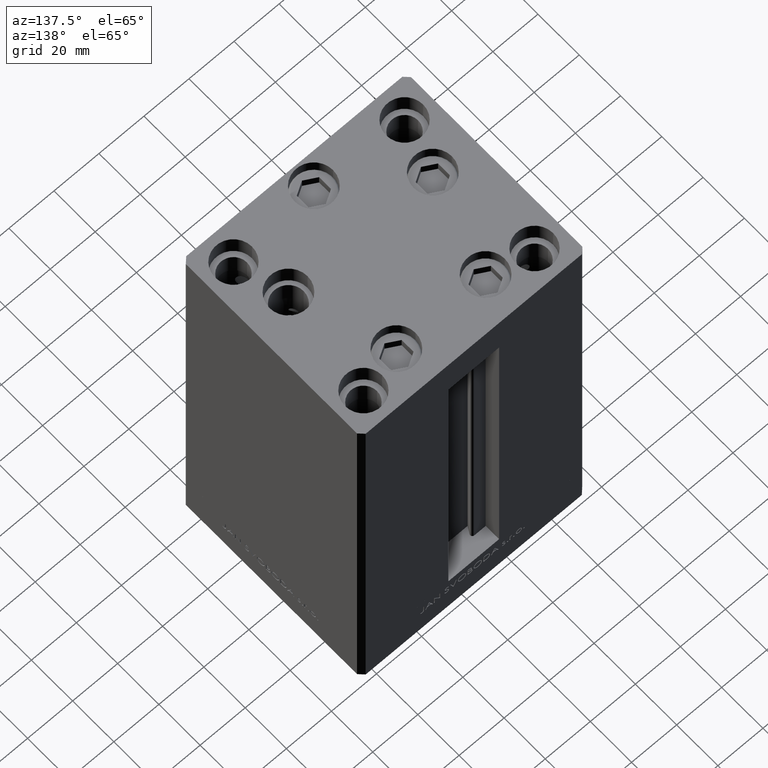
[diagram: clean part render]
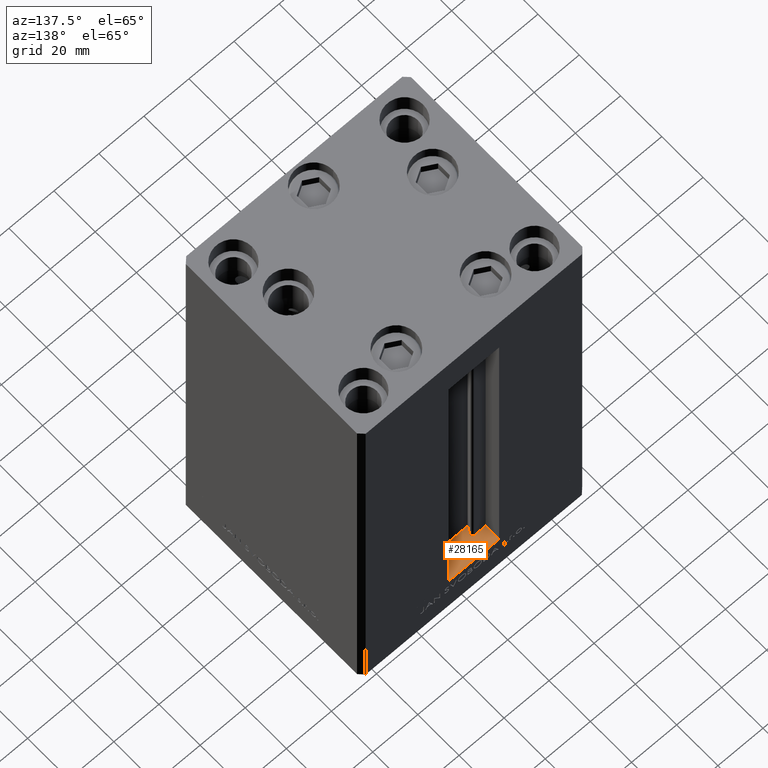
[diagram: same view with one face highlighted and labeled with its STEP entity id]
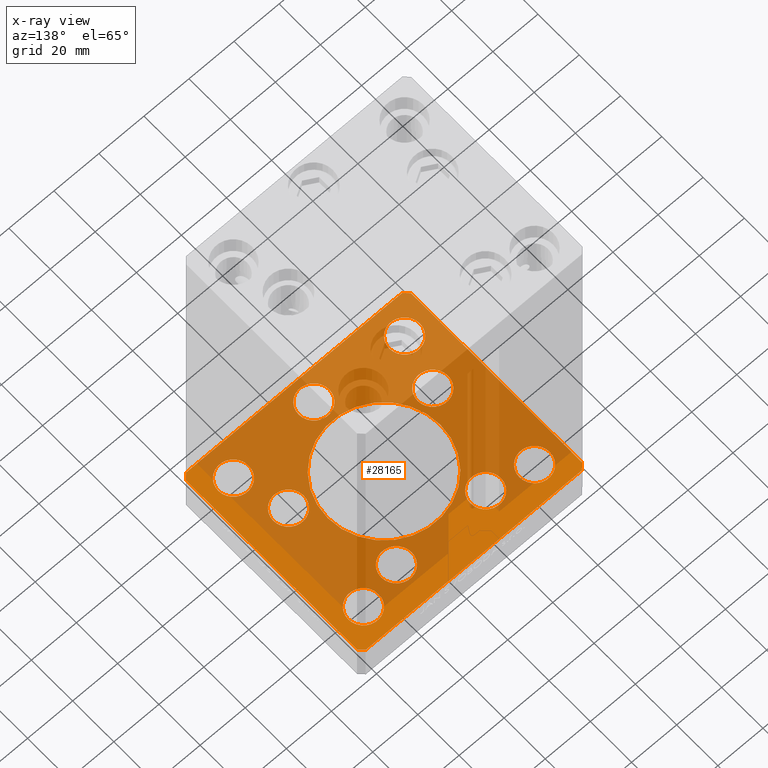
[diagram: x-ray of the same camera — body ghosted, the highlighted face saturated]
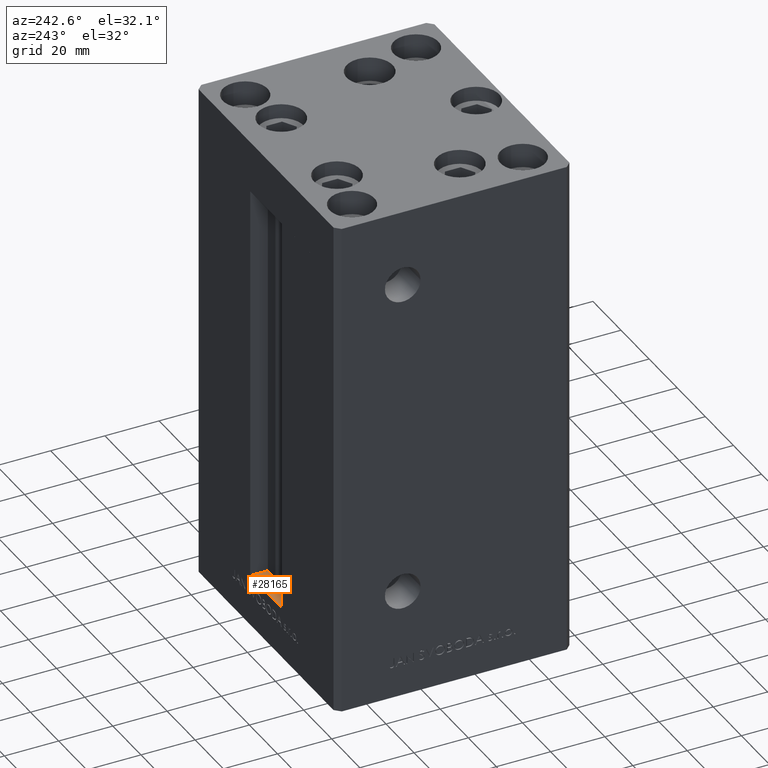
[diagram: same view with one face highlighted and labeled with its STEP entity id]
A machine part, auxiliary view. The second image highlights one B-rep face of the part: STEP entity #28165.
The next image is the same camera in x-ray: the body ghosted, the highlighted face saturated — about 75% of this face is hidden behind the body in this view.
A second angle (auxiliary view) of the same face is appended — the face is thin or edge-on in the first view.
In plain terms, the highlighted planar face has unit normal (0, 0, -1).
Its self-contained STEP definition (entity closure, byte-faithful):
#70 = VERTEX_POINT ( 'NONE', #22972 ) ;
#227 = VERTEX_POINT ( 'NONE', #35386 ) ;
#238 = DIRECTION ( 'NONE',  ( -0.000000000000000000, 0.000000000000000000, 1.000000000000000000 ) ) ;
#322 = VERTEX_POINT ( 'NONE', #41204 ) ;
#449 = DIRECTION ( 'NONE',  ( -1.000000000000000000, -2.891205793294678326E-16, 0.000000000000000000 ) ) ;
#604 = AXIS2_PLACEMENT_3D ( 'NONE', #41290, #18185, #10083 ) ;
#992 = AXIS2_PLACEMENT_3D ( 'NONE', #3879, #7442, #30523 ) ;
#1201 = CARTESIAN_POINT ( 'NONE',  ( -25.30550741379015989, -11.33333333333332860, -19.00000000000000000 ) ) ;
#1241 = CARTESIAN_POINT ( 'NONE',  ( 44.75000000000000711, -31.50000000000000711, -19.00000000000000000 ) ) ;
#1299 = VECTOR ( 'NONE', #19704, 1000.000000000000000 ) ;
#1324 = VECTOR ( 'NONE', #12312, 1000.000000000000000 ) ;
#1367 = CIRCLE ( 'NONE', #33003, 25.00000000000000000 ) ;
#1413 = EDGE_CURVE ( 'NONE', #227, #40834, #27589, .T. ) ;
#1439 = VERTEX_POINT ( 'NONE', #5397 ) ;
#1459 = CARTESIAN_POINT ( 'NONE',  ( 32.05550741379015989, -11.33333333333332860, -19.00000000000000000 ) ) ;
#1589 = CARTESIAN_POINT ( 'NONE',  ( -44.75000000000000711, -31.50000000000000711, -19.00000000000000000 ) ) ;
#2140 = CARTESIAN_POINT ( 'NONE',  ( -38.00000000000000000, 31.50000000000000000, -19.00000000000000000 ) ) ;
#2370 = VECTOR ( 'NONE', #29367, 1000.000000000000000 ) ;
#2617 = VECTOR ( 'NONE', #3645, 999.9999999999998863 ) ;
#2931 = CARTESIAN_POINT ( 'NONE',  ( -19.82068048781374969, 27.62499999999998934, -19.00000000000000000 ) ) ;
#3161 = CARTESIAN_POINT ( 'NONE',  ( -38.00000000000000000, 31.50000000000000000, -19.00000000000000000 ) ) ;
#3645 = DIRECTION ( 'NONE',  ( -0.7071067811865512365, 0.7071067811865439090, 0.000000000000000000 ) ) ;
#3818 = FACE_BOUND ( 'NONE', #47208, .T. ) ;
#3860 = EDGE_CURVE ( 'NONE', #15578, #37655, #40635, .T. ) ;
#3879 = CARTESIAN_POINT ( 'NONE',  ( -32.05550741379015989, -11.33333333333332860, -19.00000000000000000 ) ) ;
#4061 = DIRECTION ( 'NONE',  ( 0.000000000000000000, -0.000000000000000000, -1.000000000000000000 ) ) ;
#4078 = DIRECTION ( 'NONE',  ( -0.000000000000000000, 0.000000000000000000, 1.000000000000000000 ) ) ;
#4134 = ORIENTED_EDGE ( 'NONE', *, *, #45353, .F. ) ;
#4141 = DIRECTION ( 'NONE',  ( -0.000000000000000000, 0.000000000000000000, 1.000000000000000000 ) ) ;
#4728 = VERTEX_POINT ( 'NONE', #24227 ) ;
#4898 = CARTESIAN_POINT ( 'NONE',  ( -48.00000000000000000, 43.49999999999997158, -19.00000000000000000 ) ) ;
#5397 = CARTESIAN_POINT ( 'NONE',  ( -48.00000000000000711, -43.50000000000002842, -19.00000000000000000 ) ) ;
#5434 = DIRECTION ( 'NONE',  ( 1.000000000000000000, 0.000000000000000000, 0.000000000000000000 ) ) ;
#5442 = EDGE_CURVE ( 'NONE', #46063, #40208, #41463, .T. ) ;
#5487 = AXIS2_PLACEMENT_3D ( 'NONE', #31267, #24165, #19846 ) ;
#5648 = DIRECTION ( 'NONE',  ( -0.000000000000000000, 0.000000000000000000, 1.000000000000000000 ) ) ;
#5734 = AXIS2_PLACEMENT_3D ( 'NONE', #35587, #5648, #25177 ) ;
#6033 = ORIENTED_EDGE ( 'NONE', *, *, #45442, .T. ) ;
#6217 = DIRECTION ( 'NONE',  ( 1.000000000000000000, 0.000000000000000000, 0.000000000000000000 ) ) ;
#6290 = CARTESIAN_POINT ( 'NONE',  ( 38.00000000000000711, -31.50000000000000711, -19.00000000000000000 ) ) ;
#6323 = EDGE_LOOP ( 'NONE', ( #41107, #27523 ) ) ;
#6397 = VERTEX_POINT ( 'NONE', #15302 ) ;
#6411 = EDGE_CURVE ( 'NONE', #322, #32176, #6664, .T. ) ;
#6447 = AXIS2_PLACEMENT_3D ( 'NONE', #6290, #40797, #24823 ) ;
#6538 = LINE ( 'NONE', #21269, #2370 ) ;
#6664 = CIRCLE ( 'NONE', #992, 6.749999999999999112 ) ;
#6968 = EDGE_CURVE ( 'NONE', #35709, #10926, #27770, .T. ) ;
#7277 = LINE ( 'NONE', #22750, #1299 ) ;
#7442 = DIRECTION ( 'NONE',  ( -0.000000000000000000, 0.000000000000000000, 1.000000000000000000 ) ) ;
#7794 = CARTESIAN_POINT ( 'NONE',  ( -25.00000000000000000, 3.061616997868383043E-15, -19.00000000000000000 ) ) ;
#7867 = ORIENTED_EDGE ( 'NONE', *, *, #49977, .T. ) ;
#7896 = EDGE_CURVE ( 'NONE', #12876, #29345, #8481, .T. ) ;
#7898 = FACE_BOUND ( 'NONE', #40199, .T. ) ;
#8018 = LINE ( 'NONE', #23743, #1324 ) ;
#8381 = ORIENTED_EDGE ( 'NONE', *, *, #45748, .F. ) ;
#8481 = LINE ( 'NONE', #22943, #2617 ) ;
#8650 = EDGE_CURVE ( 'NONE', #42389, #49010, #26997, .T. ) ;
#8725 = AXIS2_PLACEMENT_3D ( 'NONE', #2931, #19160, #11298 ) ;
#8841 = ORIENTED_EDGE ( 'NONE', *, *, #35426, .T. ) ;
#9719 = CARTESIAN_POINT ( 'NONE',  ( 38.00000000000000711, -31.50000000000000711, -19.00000000000000000 ) ) ;
#9918 = CARTESIAN_POINT ( 'NONE',  ( 50.00000000000000000, 41.50000000000000711, -19.00000000000000000 ) ) ;
#10077 = CIRCLE ( 'NONE', #38431, 6.749999999999999112 ) ;
#10083 = DIRECTION ( 'NONE',  ( 1.000000000000000000, 0.000000000000000000, 0.000000000000000000 ) ) ;
#10243 = CIRCLE ( 'NONE', #38608, 6.749999999999999112 ) ;
#10308 = DIRECTION ( 'NONE',  ( 1.000000000000000000, 0.000000000000000000, 0.000000000000000000 ) ) ;
#10429 = CARTESIAN_POINT ( 'NONE',  ( 0.000000000000000000, -34.00000000000000000, -19.00000000000000000 ) ) ;
#10548 = EDGE_LOOP ( 'NONE', ( #18033, #44738 ) ) ;
#10737 = DIRECTION ( 'NONE',  ( 8.360113137237620037E-17, -1.000000000000000000, 0.000000000000000000 ) ) ;
#10840 = DIRECTION ( 'NONE',  ( 0.7071067811865474617, 0.7071067811865474617, 0.000000000000000000 ) ) ;
#10916 = DIRECTION ( 'NONE',  ( -0.000000000000000000, 0.000000000000000000, 1.000000000000000000 ) ) ;
#10926 = VERTEX_POINT ( 'NONE', #23892 ) ;
#11279 = CARTESIAN_POINT ( 'NONE',  ( 38.00000000000000000, 31.50000000000000000, -19.00000000000000000 ) ) ;
#11284 = CIRCLE ( 'NONE', #6447, 6.749999999999999112 ) ;
#11298 = DIRECTION ( 'NONE',  ( 1.000000000000000000, 0.000000000000000000, 0.000000000000000000 ) ) ;
#11641 = CARTESIAN_POINT ( 'NONE',  ( -31.25000000000000711, -31.50000000000000711, -19.00000000000000000 ) ) ;
#11926 = CARTESIAN_POINT ( 'NONE',  ( 0.000000000000000000, 0.000000000000000000, -19.00000000000000000 ) ) ;
#12312 = DIRECTION ( 'NONE',  ( 0.000000000000000000, 1.000000000000000000, 0.000000000000000000 ) ) ;
#12698 = FACE_BOUND ( 'NONE', #24292, .T. ) ;
#12876 = VERTEX_POINT ( 'NONE', #9918 ) ;
#13042 = CARTESIAN_POINT ( 'NONE',  ( 0.000000000000000000, 0.000000000000000000, -19.00000000000000000 ) ) ;
#13206 = CARTESIAN_POINT ( 'NONE',  ( 25.30550741379015989, -11.33333333333332860, -19.00000000000000000 ) ) ;
#13266 = EDGE_CURVE ( 'NONE', #48171, #4728, #30125, .T. ) ;
#13564 = ORIENTED_EDGE ( 'NONE', *, *, #6411, .T. ) ;
#13583 = CARTESIAN_POINT ( 'NONE',  ( -38.00000000000000711, -31.50000000000000711, -19.00000000000000000 ) ) ;
#13592 = CIRCLE ( 'NONE', #5487, 6.749999999999999112 ) ;
#14124 = CARTESIAN_POINT ( 'NONE',  ( 19.82068048781374969, 27.62499999999998934, -19.00000000000000000 ) ) ;
#14374 = CIRCLE ( 'NONE', #41115, 6.749999999999999112 ) ;
#14821 = EDGE_LOOP ( 'NONE', ( #21517, #30377 ) ) ;
#15019 = AXIS2_PLACEMENT_3D ( 'NONE', #38852, #4078, #19561 ) ;
#15302 = CARTESIAN_POINT ( 'NONE',  ( 26.57068048781374969, 27.62499999999998934, -19.00000000000000000 ) ) ;
#15544 = VERTEX_POINT ( 'NONE', #11641 ) ;
#15578 = VERTEX_POINT ( 'NONE', #27372 ) ;
#16079 = CARTESIAN_POINT ( 'NONE',  ( 0.000000000000000000, -34.00000000000000000, -19.00000000000000000 ) ) ;
#16876 = AXIS2_PLACEMENT_3D ( 'NONE', #3161, #49615, #37204 ) ;
#16885 = DIRECTION ( 'NONE',  ( 0.7071067811865487940, -0.7071067811865463515, 0.000000000000000000 ) ) ;
#16929 = ORIENTED_EDGE ( 'NONE', *, *, #44664, .F. ) ;
#17192 = DIRECTION ( 'NONE',  ( 1.000000000000000000, 0.000000000000000000, 0.000000000000000000 ) ) ;
#17979 = VERTEX_POINT ( 'NONE', #21659 ) ;
#18033 = ORIENTED_EDGE ( 'NONE', *, *, #3860, .F. ) ;
#18185 = DIRECTION ( 'NONE',  ( 0.000000000000000000, -0.000000000000000000, -1.000000000000000000 ) ) ;
#18458 = CARTESIAN_POINT ( 'NONE',  ( 44.75000000000000000, 31.50000000000000000, -19.00000000000000000 ) ) ;
#18705 = EDGE_CURVE ( 'NONE', #25168, #38275, #19085, .T. ) ;
#19085 = CIRCLE ( 'NONE', #25598, 6.749999999999999112 ) ;
#19145 = EDGE_CURVE ( 'NONE', #70, #6397, #13592, .T. ) ;
#19160 = DIRECTION ( 'NONE',  ( -0.000000000000000000, 0.000000000000000000, 1.000000000000000000 ) ) ;
#19318 = DIRECTION ( 'NONE',  ( 1.000000000000000000, 0.000000000000000000, 0.000000000000000000 ) ) ;
#19542 = DIRECTION ( 'NONE',  ( 1.000000000000000000, 0.000000000000000000, 0.000000000000000000 ) ) ;
#19561 = DIRECTION ( 'NONE',  ( 1.000000000000000000, 0.000000000000000000, 0.000000000000000000 ) ) ;
#19704 = DIRECTION ( 'NONE',  ( 1.000000000000000000, 1.156482317317871331E-15, 0.000000000000000000 ) ) ;
#19748 = LINE ( 'NONE', #50210, #29287 ) ;
#19846 = DIRECTION ( 'NONE',  ( 1.000000000000000000, 0.000000000000000000, 0.000000000000000000 ) ) ;
#20188 = LINE ( 'NONE', #35658, #47929 ) ;
#20335 = DIRECTION ( 'NONE',  ( 1.000000000000000000, 0.000000000000000000, 0.000000000000000000 ) ) ;
#20842 = CARTESIAN_POINT ( 'NONE',  ( -6.749999999999999112, -34.00000000000000000, -19.00000000000000000 ) ) ;
#21269 = CARTESIAN_POINT ( 'NONE',  ( -48.00000000000000000, 43.49999999999997158, -19.00000000000000000 ) ) ;
#21517 = ORIENTED_EDGE ( 'NONE', *, *, #34164, .F. ) ;
#21525 = CARTESIAN_POINT ( 'NONE',  ( 47.99999999999999289, 43.50000000000000000, -19.00000000000000000 ) ) ;
#21659 = CARTESIAN_POINT ( 'NONE',  ( -50.00000000000000000, -41.50000000000004263, -19.00000000000000000 ) ) ;
#22338 = ORIENTED_EDGE ( 'NONE', *, *, #5442, .T. ) ;
#22750 = CARTESIAN_POINT ( 'NONE',  ( -48.00000000000000711, -43.50000000000002842, -19.00000000000000000 ) ) ;
#22773 = ORIENTED_EDGE ( 'NONE', *, *, #41224, .F. ) ;
#22808 = AXIS2_PLACEMENT_3D ( 'NONE', #13042, #48063, #5434 ) ;
#22943 = CARTESIAN_POINT ( 'NONE',  ( 50.00000000000000000, 41.50000000000000711, -19.00000000000000000 ) ) ;
#22972 = CARTESIAN_POINT ( 'NONE',  ( 13.07068048781375147, 27.62499999999998934, -19.00000000000000000 ) ) ;
#23385 = PLANE ( 'NONE',  #15019 ) ;
#23616 = ORIENTED_EDGE ( 'NONE', *, *, #13266, .F. ) ;
#23686 = ORIENTED_EDGE ( 'NONE', *, *, #1413, .T. ) ;
#23743 = CARTESIAN_POINT ( 'NONE',  ( 50.00000000000000000, -41.49999999999992895, -19.00000000000000000 ) ) ;
#23892 = CARTESIAN_POINT ( 'NONE',  ( 6.749999999999999112, -34.00000000000000000, -19.00000000000000000 ) ) ;
#24165 = DIRECTION ( 'NONE',  ( -0.000000000000000000, 0.000000000000000000, 1.000000000000000000 ) ) ;
#24227 = CARTESIAN_POINT ( 'NONE',  ( 50.00000000000000000, -41.49999999999992895, -19.00000000000000000 ) ) ;
#24292 = EDGE_LOOP ( 'NONE', ( #6033, #22338 ) ) ;
#24377 = FACE_BOUND ( 'NONE', #25530, .T. ) ;
#24609 = ORIENTED_EDGE ( 'NONE', *, *, #18705, .F. ) ;
#24650 = DIRECTION ( 'NONE',  ( 0.000000000000000000, -0.000000000000000000, -1.000000000000000000 ) ) ;
#24789 = ORIENTED_EDGE ( 'NONE', *, *, #7896, .F. ) ;
#24823 = DIRECTION ( 'NONE',  ( 1.000000000000000000, 0.000000000000000000, 0.000000000000000000 ) ) ;
#24903 = CARTESIAN_POINT ( 'NONE',  ( -31.25000000000000000, 31.50000000000000000, -19.00000000000000000 ) ) ;
#24989 = VERTEX_POINT ( 'NONE', #1589 ) ;
#25168 = VERTEX_POINT ( 'NONE', #49779 ) ;
#25177 = DIRECTION ( 'NONE',  ( 1.000000000000000000, 0.000000000000000000, 0.000000000000000000 ) ) ;
#25200 = DIRECTION ( 'NONE',  ( 1.000000000000000000, 0.000000000000000000, 0.000000000000000000 ) ) ;
#25266 = EDGE_LOOP ( 'NONE', ( #8381, #16929, #22773, #4134, #24789, #50008, #23616, #25390 ) ) ;
#25288 = AXIS2_PLACEMENT_3D ( 'NONE', #31713, #238, #49990 ) ;
#25390 = ORIENTED_EDGE ( 'NONE', *, *, #29535, .F. ) ;
#25426 = EDGE_CURVE ( 'NONE', #38275, #25168, #10077, .T. ) ;
#25530 = EDGE_LOOP ( 'NONE', ( #7867, #23686 ) ) ;
#25598 = AXIS2_PLACEMENT_3D ( 'NONE', #11279, #38177, #50119 ) ;
#26997 = CIRCLE ( 'NONE', #48072, 6.749999999999999112 ) ;
#27167 = FACE_OUTER_BOUND ( 'NONE', #25266, .T. ) ;
#27287 = ORIENTED_EDGE ( 'NONE', *, *, #31561, .T. ) ;
#27372 = CARTESIAN_POINT ( 'NONE',  ( 25.00000000000000000, 0.000000000000000000, -19.00000000000000000 ) ) ;
#27523 = ORIENTED_EDGE ( 'NONE', *, *, #6968, .T. ) ;
#27589 = CIRCLE ( 'NONE', #5734, 6.749999999999999112 ) ;
#27770 = CIRCLE ( 'NONE', #31830, 6.749999999999999112 ) ;
#28165 = ADVANCED_FACE ( 'NONE', ( #31982, #31738, #47471, #12698, #28174, #24377, #3818, #34774, #27167, #42649, #7898 ), #23385, .F. ) ;
#28174 = FACE_BOUND ( 'NONE', #30544, .T. ) ;
#28363 = DIRECTION ( 'NONE',  ( -0.000000000000000000, 0.000000000000000000, 1.000000000000000000 ) ) ;
#28855 = ORIENTED_EDGE ( 'NONE', *, *, #41186, .T. ) ;
#28933 = CARTESIAN_POINT ( 'NONE',  ( 38.00000000000000000, 31.50000000000000000, -19.00000000000000000 ) ) ;
#29287 = VECTOR ( 'NONE', #449, 1000.000000000000000 ) ;
#29345 = VERTEX_POINT ( 'NONE', #21525 ) ;
#29367 = DIRECTION ( 'NONE',  ( -0.7071067811865536790, -0.7071067811865414665, 0.000000000000000000 ) ) ;
#29535 = EDGE_CURVE ( 'NONE', #1439, #48171, #7277, .T. ) ;
#29597 = CARTESIAN_POINT ( 'NONE',  ( 48.00000000000000711, -43.49999999999992184, -19.00000000000000000 ) ) ;
#29599 = DIRECTION ( 'NONE',  ( -0.000000000000000000, 0.000000000000000000, 1.000000000000000000 ) ) ;
#30125 = LINE ( 'NONE', #45618, #48898 ) ;
#30377 = ORIENTED_EDGE ( 'NONE', *, *, #32973, .F. ) ;
#30523 = DIRECTION ( 'NONE',  ( 1.000000000000000000, 0.000000000000000000, 0.000000000000000000 ) ) ;
#30544 = EDGE_LOOP ( 'NONE', ( #27287, #49082 ) ) ;
#30921 = AXIS2_PLACEMENT_3D ( 'NONE', #1459, #28363, #17192 ) ;
#31037 = ORIENTED_EDGE ( 'NONE', *, *, #36070, .T. ) ;
#31045 = DIRECTION ( 'NONE',  ( 1.000000000000000000, 0.000000000000000000, 0.000000000000000000 ) ) ;
#31217 = EDGE_CURVE ( 'NONE', #37655, #15578, #1367, .T. ) ;
#31267 = CARTESIAN_POINT ( 'NONE',  ( 19.82068048781374969, 27.62499999999998934, -19.00000000000000000 ) ) ;
#31561 = EDGE_CURVE ( 'NONE', #6397, #70, #47567, .T. ) ;
#31568 = EDGE_LOOP ( 'NONE', ( #31037, #13564 ) ) ;
#31713 = CARTESIAN_POINT ( 'NONE',  ( 32.05550741379015989, -11.33333333333332860, -19.00000000000000000 ) ) ;
#31738 = FACE_BOUND ( 'NONE', #31568, .T. ) ;
#31830 = AXIS2_PLACEMENT_3D ( 'NONE', #16079, #4141, #31045 ) ;
#31982 = FACE_BOUND ( 'NONE', #10548, .T. ) ;
#32024 = ORIENTED_EDGE ( 'NONE', *, *, #38578, .T. ) ;
#32176 = VERTEX_POINT ( 'NONE', #1201 ) ;
#32973 = EDGE_CURVE ( 'NONE', #24989, #15544, #50021, .T. ) ;
#32997 = CIRCLE ( 'NONE', #39481, 6.749999999999999112 ) ;
#33003 = AXIS2_PLACEMENT_3D ( 'NONE', #11926, #4061, #19542 ) ;
#33266 = EDGE_CURVE ( 'NONE', #4728, #12876, #8018, .T. ) ;
#33580 = CARTESIAN_POINT ( 'NONE',  ( -50.00000000000000711, 41.49999999999999289, -19.00000000000000000 ) ) ;
#33757 = DIRECTION ( 'NONE',  ( 1.000000000000000000, 0.000000000000000000, 0.000000000000000000 ) ) ;
#34164 = EDGE_CURVE ( 'NONE', #15544, #24989, #10243, .T. ) ;
#34774 = FACE_BOUND ( 'NONE', #14821, .T. ) ;
#34888 = AXIS2_PLACEMENT_3D ( 'NONE', #10429, #10916, #33757 ) ;
#35386 = CARTESIAN_POINT ( 'NONE',  ( -26.57068048781375325, 27.62499999999998934, -19.00000000000000000 ) ) ;
#35426 = EDGE_CURVE ( 'NONE', #44716, #38155, #14374, .T. ) ;
#35587 = CARTESIAN_POINT ( 'NONE',  ( -19.82068048781374969, 27.62499999999998934, -19.00000000000000000 ) ) ;
#35651 = CARTESIAN_POINT ( 'NONE',  ( 38.80550741379015989, -11.33333333333332860, -19.00000000000000000 ) ) ;
#35658 = CARTESIAN_POINT ( 'NONE',  ( -50.00000000000000000, -41.50000000000004263, -19.00000000000000000 ) ) ;
#35709 = VERTEX_POINT ( 'NONE', #20842 ) ;
#35743 = VECTOR ( 'NONE', #10737, 1000.000000000000000 ) ;
#36070 = EDGE_CURVE ( 'NONE', #32176, #322, #32997, .T. ) ;
#37204 = DIRECTION ( 'NONE',  ( 1.000000000000000000, 0.000000000000000000, 0.000000000000000000 ) ) ;
#37333 = CIRCLE ( 'NONE', #34888, 6.749999999999999112 ) ;
#37655 = VERTEX_POINT ( 'NONE', #7794 ) ;
#37941 = EDGE_LOOP ( 'NONE', ( #42554, #32024 ) ) ;
#38155 = VERTEX_POINT ( 'NONE', #1241 ) ;
#38177 = DIRECTION ( 'NONE',  ( 0.000000000000000000, -0.000000000000000000, -1.000000000000000000 ) ) ;
#38275 = VERTEX_POINT ( 'NONE', #18458 ) ;
#38431 = AXIS2_PLACEMENT_3D ( 'NONE', #28933, #24650, #20335 ) ;
#38578 = EDGE_CURVE ( 'NONE', #49010, #42389, #42813, .T. ) ;
#38608 = AXIS2_PLACEMENT_3D ( 'NONE', #13583, #47852, #40726 ) ;
#38714 = CARTESIAN_POINT ( 'NONE',  ( -44.75000000000000000, 31.50000000000000000, -19.00000000000000000 ) ) ;
#38852 = CARTESIAN_POINT ( 'NONE',  ( 0.000000000000000000, 0.000000000000000000, -19.00000000000000000 ) ) ;
#39103 = CARTESIAN_POINT ( 'NONE',  ( -13.07068048781375325, 27.62499999999998934, -19.00000000000000000 ) ) ;
#39481 = AXIS2_PLACEMENT_3D ( 'NONE', #39620, #50029, #19318 ) ;
#39620 = CARTESIAN_POINT ( 'NONE',  ( -32.05550741379015989, -11.33333333333332860, -19.00000000000000000 ) ) ;
#40199 = EDGE_LOOP ( 'NONE', ( #28855, #8841 ) ) ;
#40208 = VERTEX_POINT ( 'NONE', #35651 ) ;
#40634 = CIRCLE ( 'NONE', #30921, 6.749999999999999112 ) ;
#40635 = CIRCLE ( 'NONE', #22808, 25.00000000000000000 ) ;
#40726 = DIRECTION ( 'NONE',  ( 1.000000000000000000, 0.000000000000000000, 0.000000000000000000 ) ) ;
#40797 = DIRECTION ( 'NONE',  ( -0.000000000000000000, 0.000000000000000000, 1.000000000000000000 ) ) ;
#40834 = VERTEX_POINT ( 'NONE', #39103 ) ;
#40928 = DIRECTION ( 'NONE',  ( -0.000000000000000000, 0.000000000000000000, 1.000000000000000000 ) ) ;
#40977 = DIRECTION ( 'NONE',  ( -0.000000000000000000, 0.000000000000000000, 1.000000000000000000 ) ) ;
#41107 = ORIENTED_EDGE ( 'NONE', *, *, #47479, .T. ) ;
#41115 = AXIS2_PLACEMENT_3D ( 'NONE', #9719, #40928, #25200 ) ;
#41186 = EDGE_CURVE ( 'NONE', #38155, #44716, #11284, .T. ) ;
#41204 = CARTESIAN_POINT ( 'NONE',  ( -38.80550741379015989, -11.33333333333332860, -19.00000000000000000 ) ) ;
#41224 = EDGE_CURVE ( 'NONE', #49206, #48635, #6538, .T. ) ;
#41290 = CARTESIAN_POINT ( 'NONE',  ( -38.00000000000000711, -31.50000000000000711, -19.00000000000000000 ) ) ;
#41463 = CIRCLE ( 'NONE', #25288, 6.749999999999999112 ) ;
#41705 = CARTESIAN_POINT ( 'NONE',  ( 31.25000000000000711, -31.50000000000000711, -19.00000000000000000 ) ) ;
#42389 = VERTEX_POINT ( 'NONE', #24903 ) ;
#42554 = ORIENTED_EDGE ( 'NONE', *, *, #8650, .T. ) ;
#42649 = FACE_BOUND ( 'NONE', #37941, .T. ) ;
#42813 = CIRCLE ( 'NONE', #16876, 6.749999999999999112 ) ;
#44655 = CARTESIAN_POINT ( 'NONE',  ( -50.00000000000000711, 41.49999999999999289, -19.00000000000000000 ) ) ;
#44664 = EDGE_CURVE ( 'NONE', #48635, #17979, #45513, .T. ) ;
#44716 = VERTEX_POINT ( 'NONE', #41705 ) ;
#44738 = ORIENTED_EDGE ( 'NONE', *, *, #31217, .F. ) ;
#45353 = EDGE_CURVE ( 'NONE', #29345, #49206, #19748, .T. ) ;
#45413 = ORIENTED_EDGE ( 'NONE', *, *, #25426, .F. ) ;
#45442 = EDGE_CURVE ( 'NONE', #40208, #46063, #40634, .T. ) ;
#45513 = LINE ( 'NONE', #33580, #35743 ) ;
#45618 = CARTESIAN_POINT ( 'NONE',  ( 48.00000000000000711, -43.49999999999992184, -19.00000000000000000 ) ) ;
#45748 = EDGE_CURVE ( 'NONE', #17979, #1439, #20188, .T. ) ;
#45963 = AXIS2_PLACEMENT_3D ( 'NONE', #14124, #29599, #10308 ) ;
#46063 = VERTEX_POINT ( 'NONE', #13206 ) ;
#47208 = EDGE_LOOP ( 'NONE', ( #45413, #24609 ) ) ;
#47471 = FACE_BOUND ( 'NONE', #6323, .T. ) ;
#47479 = EDGE_CURVE ( 'NONE', #10926, #35709, #37333, .T. ) ;
#47567 = CIRCLE ( 'NONE', #45963, 6.749999999999999112 ) ;
#47852 = DIRECTION ( 'NONE',  ( 0.000000000000000000, -0.000000000000000000, -1.000000000000000000 ) ) ;
#47929 = VECTOR ( 'NONE', #16885, 1000.000000000000000 ) ;
#48063 = DIRECTION ( 'NONE',  ( 0.000000000000000000, -0.000000000000000000, -1.000000000000000000 ) ) ;
#48072 = AXIS2_PLACEMENT_3D ( 'NONE', #2140, #40977, #6217 ) ;
#48171 = VERTEX_POINT ( 'NONE', #29597 ) ;
#48461 = CIRCLE ( 'NONE', #8725, 6.749999999999999112 ) ;
#48635 = VERTEX_POINT ( 'NONE', #44655 ) ;
#48898 = VECTOR ( 'NONE', #10840, 1000.000000000000114 ) ;
#49010 = VERTEX_POINT ( 'NONE', #38714 ) ;
#49082 = ORIENTED_EDGE ( 'NONE', *, *, #19145, .T. ) ;
#49206 = VERTEX_POINT ( 'NONE', #4898 ) ;
#49615 = DIRECTION ( 'NONE',  ( -0.000000000000000000, 0.000000000000000000, 1.000000000000000000 ) ) ;
#49779 = CARTESIAN_POINT ( 'NONE',  ( 31.25000000000000000, 31.50000000000000000, -19.00000000000000000 ) ) ;
#49977 = EDGE_CURVE ( 'NONE', #40834, #227, #48461, .T. ) ;
#49990 = DIRECTION ( 'NONE',  ( 1.000000000000000000, 0.000000000000000000, 0.000000000000000000 ) ) ;
#50008 = ORIENTED_EDGE ( 'NONE', *, *, #33266, .F. ) ;
#50021 = CIRCLE ( 'NONE', #604, 6.749999999999999112 ) ;
#50029 = DIRECTION ( 'NONE',  ( -0.000000000000000000, 0.000000000000000000, 1.000000000000000000 ) ) ;
#50119 = DIRECTION ( 'NONE',  ( 1.000000000000000000, 0.000000000000000000, 0.000000000000000000 ) ) ;
#50210 = CARTESIAN_POINT ( 'NONE',  ( 47.99999999999999289, 43.50000000000000000, -19.00000000000000000 ) ) ;